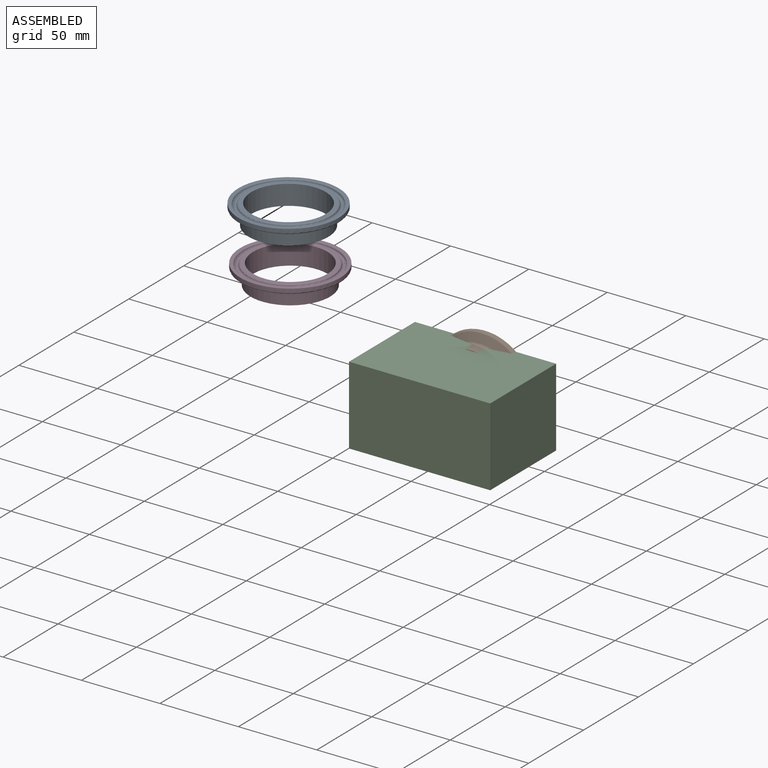
[diagram: assembled view]
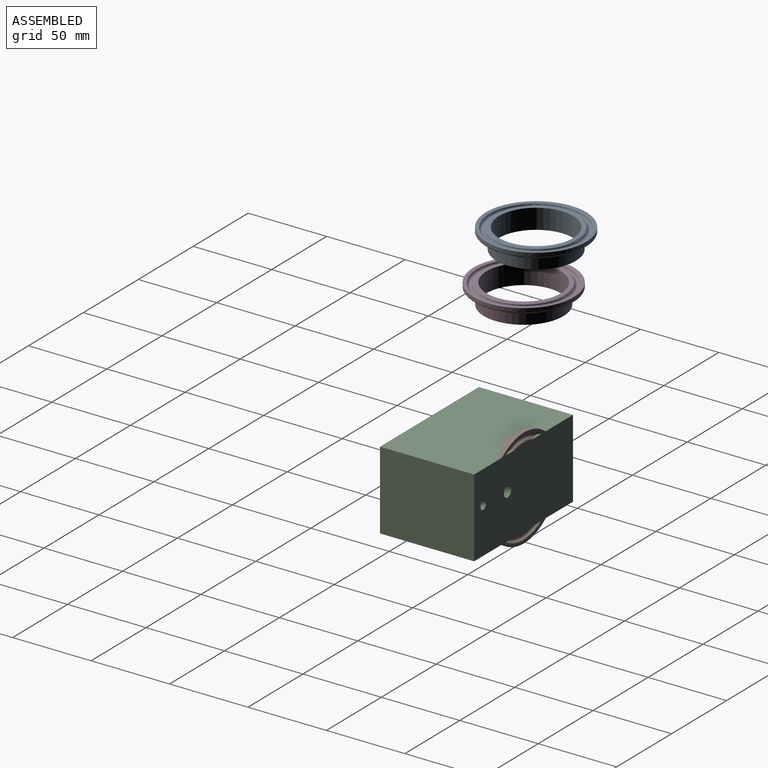
[diagram: assembled view, second angle]
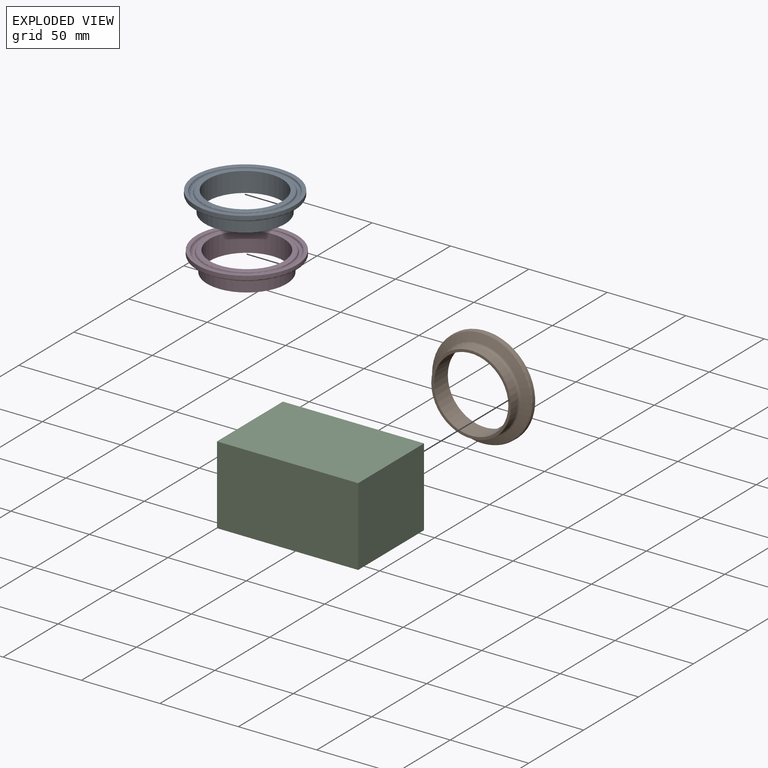
[diagram: exploded view]
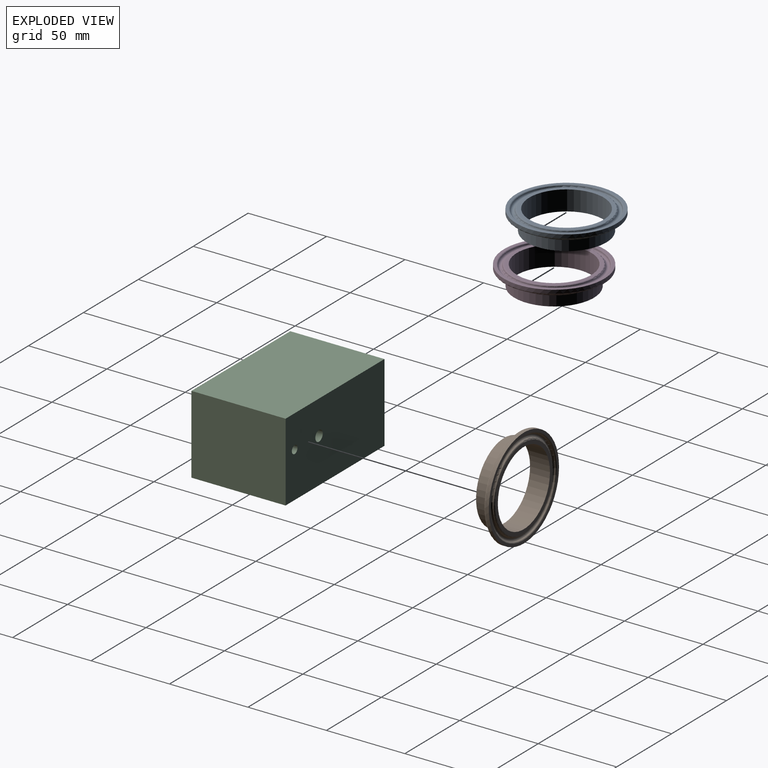
[diagram: exploded view, second angle]
ASSEMBLY  parts=4 mates=2
PART A: 12 faces, bbox 69.2x69.2x12.7 mm
  f0: plane 50.8x50.8mm, normal (0,0,-1), area 254.9mm2, adj f1,f10
  f1: cylinder r=23.75mm len=47.5mm, axis (0,0,-1), area 1895.1mm2, adj f0,f2
  f2: plane 52.26x52.26mm, normal (0,0,1), area 373.1mm2, adj f1,f3
  f3: torus R=26.13mm, axis (0,0,-1), area 188.8mm2, adj f2,f4
  f4: torus R=28.17mm, axis (0,0,-1), area 644.9mm2, adj f3,f5
  f5: torus R=30.21mm, axis (0,0,-1), area 211mm2, adj f4,f6
  f6: plane 63.91x63.91mm, normal (0,0,1), area 341mm2, adj f5,f7
  f7: cylinder r=31.95mm len=63.91mm, axis (0,0,-1), area 464mm2, adj f6,f11
  f8: cone r=31.95mm half-angle=70deg, axis (0,0,1), area 976.6mm2, adj f9,f11
  f9: torus R=26.92mm, axis (0,0,-1), area 301.3mm2, adj f8,f10
  f10: cylinder r=25.4mm len=50.8mm, axis (0,0,-1), area 1021.9mm2, adj f0,f9
  f11: torus R=31.19mm, axis (0,0,1), area 185.9mm2, adj f7,f8
PART B: same geometry as A
PART C: 10 faces, bbox 90x60x50 mm
  f0: plane 90x50mm, normal (0,1,0), area 4443.7mm2, adj f1,f3,f4,f5,f7,f9
  f1: plane 60x50mm, normal (-1,0,0), area 3000mm2, adj f0,f2,f4,f5
  f2: plane 90x50mm, normal (0,-1,0), area 4500mm2, adj f1,f3,f4,f5
  f3: plane 60x50mm, normal (1,0,0), area 3000mm2, adj f0,f2,f4,f5
  f4: plane 90x60mm, normal (0,0,1), area 5400mm2, adj f0,f1,f2,f3
  f5: plane 90x60mm, normal (0,0,-1), area 5400mm2, adj f0,f1,f2,f3
  f6: cone r=0mm half-angle=59deg, axis (0,1,0), area 23.9mm2, adj f7
  f7: cylinder r=2.55mm len=6.81mm, axis (0,1,0), area 109.2mm2, adj f0,f6
  f8: cone r=0mm half-angle=59deg, axis (0,1,0), area 41.8mm2, adj f9
  f9: cylinder r=3.38mm len=6.81mm, axis (0,1,0), area 144.5mm2, adj f0,f8
PART D: same geometry as A
PLACE A t=(-79.95,52.67,105.59)mm
PLACE B rot(axis=(-1,0,0),90deg) t=(7.75,106.28,3.06)mm
PLACE C t=(19.92,97.27,-21.9)mm
PLACE D t=(-75.48,47.89,74.16)mm
MATE planar D.f1 <-> D.f1  axis (0,0,-1) through (-75.48,47.89,64.66)mm
MATE cylindrical C.f0 <-> B.f1  axis (0,1,0) through (7.75,106.28,3.06)mm
